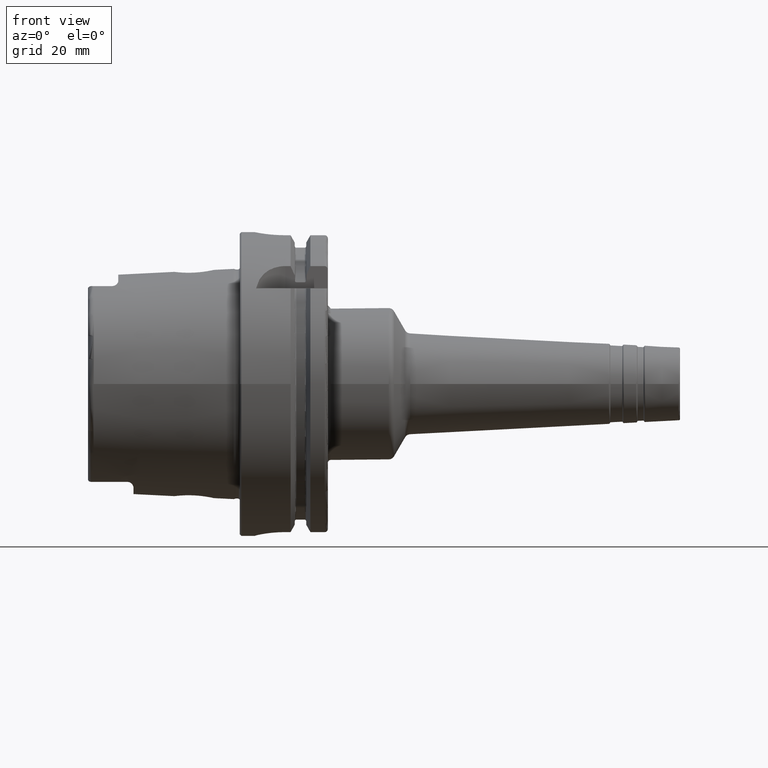
[diagram: clean part render]
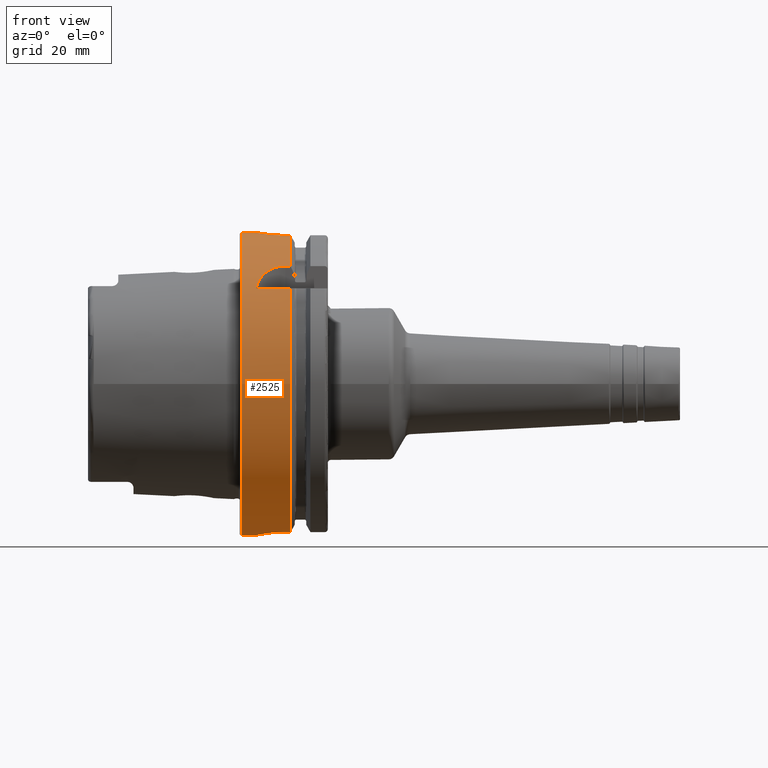
[diagram: same view with one face highlighted and labeled with its STEP entity id]
A machine part, front view. The second image highlights one B-rep face of the part: STEP entity #2525.
In plain terms, the highlighted cylindrical surface (bore or boss wall) has radius 50 mm, axis along (1, 0, 0).
Its self-contained STEP definition (entity closure, byte-faithful):
#57=B_SPLINE_CURVE_WITH_KNOTS('',3,(#4827,#4828,#4829,#4830,#4831,#4832,
#4833,#4834,#4835,#4836,#4837,#4838,#4839,#4840,#4841,#4842,#4843,#4844,
#4845,#4846,#4847,#4848,#4849,#4850,#4851,#4852),.UNSPECIFIED.,.F.,.F.,
(4,2,2,2,2,2,2,2,2,2,2,2,4),(0.,0.188478911015149,0.376957822030298,0.565436091508923,
0.753914360987547,0.942392630466172,1.1308708999448,1.31934981095995,1.50782872197509,
1.69630763299024,1.88478654400539,2.07326481348402,2.26174308296264),
 .UNSPECIFIED.);
#58=B_SPLINE_CURVE_WITH_KNOTS('',3,(#4853,#4854,#4855,#4856,#4857,#4858,
#4859,#4860,#4861,#4862),.UNSPECIFIED.,.F.,.F.,(4,2,2,2,4),(2.26174308296264,
2.45022135244127,2.63869962191989,2.82717853293504,3.01565744395019),
 .UNSPECIFIED.);
#59=B_SPLINE_CURVE_WITH_KNOTS('',3,(#4873,#4874,#4875,#4876,#4877,#4878,
#4879,#4880,#4881,#4882,#4883,#4884),.UNSPECIFIED.,.F.,.F.,(4,2,2,2,2,4),
(1.13213255574021,1.59216410027009,1.87572541272146,2.15928672517283,2.38471683342296,
2.61014694167308),.UNSPECIFIED.);
#66=B_SPLINE_CURVE_WITH_KNOTS('',3,(#4997,#4998,#4999,#5000,#5001,#5002,
#5003,#5004,#5005,#5006,#5007,#5008,#5009,#5010,#5011,#5012,#5013,#5014),
 .UNSPECIFIED.,.F.,.F.,(4,2,2,2,2,2,2,2,4),(0.,0.377795255890194,0.755590511780389,
1.13336459804459,1.51113868430879,1.88891277057299,2.26668685683718,2.64448211272738,
3.02227736861757),.UNSPECIFIED.);
#67=B_SPLINE_CURVE_WITH_KNOTS('',3,(#5022,#5023,#5024,#5025,#5026,#5027,
#5028,#5029,#5030,#5031),.UNSPECIFIED.,.F.,.F.,(4,2,2,2,4),(0.,0.377863193874929,
0.755726387749858,1.13417752669663,1.51262866564341),.UNSPECIFIED.);
#68=B_SPLINE_CURVE_WITH_KNOTS('',3,(#5035,#5036,#5037,#5038,#5039,#5040,
#5041,#5042,#5043,#5044),.UNSPECIFIED.,.F.,.F.,(4,2,2,2,4),(1.50996806152532,
1.8884192004721,2.26687033941887,2.6447335332938,3.02259672716873),
 .UNSPECIFIED.);
#122=FACE_BOUND('',#617,.T.);
#219=LINE('',#4890,#331);
#225=LINE('',#4942,#337);
#230=LINE('',#4995,#342);
#231=LINE('',#5016,#343);
#232=LINE('',#5020,#344);
#233=LINE('',#5046,#345);
#234=LINE('',#5050,#346);
#331=VECTOR('',#3418,10.);
#337=VECTOR('',#3426,10.);
#342=VECTOR('',#3435,10.);
#343=VECTOR('',#3436,10.);
#344=VECTOR('',#3439,10.);
#345=VECTOR('',#3442,10.);
#346=VECTOR('',#3445,50.);
#402=CYLINDRICAL_SURFACE('',#2813,50.);
#478=FACE_OUTER_BOUND('',#616,.T.);
#616=EDGE_LOOP('',(#2017,#2018,#2019,#2020,#2021,#2022,#2023,#2024,#2025,
#2026,#2027,#2028,#2029,#2030,#2031,#2032,#2033,#2034,#2035));
#617=EDGE_LOOP('',(#2036,#2037));
#828=CIRCLE('',#2814,50.);
#829=CIRCLE('',#2815,50.);
#830=CIRCLE('',#2816,50.);
#831=CIRCLE('',#2817,50.);
#832=CIRCLE('',#2818,50.);
#833=CIRCLE('',#2819,50.);
#834=CIRCLE('',#2820,50.);
#1087=VERTEX_POINT('',#4824);
#1088=VERTEX_POINT('',#4826);
#1091=VERTEX_POINT('',#4871);
#1092=VERTEX_POINT('',#4872);
#1094=VERTEX_POINT('',#4889);
#1103=VERTEX_POINT('',#4941);
#1112=VERTEX_POINT('',#4992);
#1113=VERTEX_POINT('',#4994);
#1114=VERTEX_POINT('',#4996);
#1115=VERTEX_POINT('',#5015);
#1116=VERTEX_POINT('',#5017);
#1117=VERTEX_POINT('',#5019);
#1118=VERTEX_POINT('',#5021);
#1119=VERTEX_POINT('',#5032);
#1120=VERTEX_POINT('',#5034);
#1121=VERTEX_POINT('',#5045);
#1122=VERTEX_POINT('',#5047);
#1123=VERTEX_POINT('',#5049);
#1124=VERTEX_POINT('',#5051);
#1420=EDGE_CURVE('',#1088,#1087,#57,.T.);
#1421=EDGE_CURVE('',#1087,#1088,#58,.T.);
#1425=EDGE_CURVE('',#1091,#1092,#59,.T.);
#1428=EDGE_CURVE('',#1092,#1094,#219,.T.);
#1439=EDGE_CURVE('',#1103,#1091,#225,.T.);
#1449=EDGE_CURVE('',#1112,#1094,#828,.T.);
#1450=EDGE_CURVE('',#1112,#1113,#230,.T.);
#1451=EDGE_CURVE('',#1113,#1114,#66,.T.);
#1452=EDGE_CURVE('',#1114,#1115,#231,.T.);
#1453=EDGE_CURVE('',#1116,#1115,#829,.T.);
#1454=EDGE_CURVE('',#1116,#1117,#232,.T.);
#1455=EDGE_CURVE('',#1117,#1118,#67,.T.);
#1456=EDGE_CURVE('',#1118,#1119,#830,.T.);
#1457=EDGE_CURVE('',#1119,#1120,#68,.T.);
#1458=EDGE_CURVE('',#1120,#1121,#233,.T.);
#1459=EDGE_CURVE('',#1122,#1121,#831,.T.);
#1460=EDGE_CURVE('',#1122,#1123,#234,.T.);
#1461=EDGE_CURVE('',#1123,#1124,#832,.T.);
#1462=EDGE_CURVE('',#1124,#1123,#833,.T.);
#1463=EDGE_CURVE('',#1103,#1122,#834,.T.);
#2017=ORIENTED_EDGE('',*,*,#1439,.T.);
#2018=ORIENTED_EDGE('',*,*,#1425,.T.);
#2019=ORIENTED_EDGE('',*,*,#1428,.T.);
#2020=ORIENTED_EDGE('',*,*,#1449,.F.);
#2021=ORIENTED_EDGE('',*,*,#1450,.T.);
#2022=ORIENTED_EDGE('',*,*,#1451,.T.);
#2023=ORIENTED_EDGE('',*,*,#1452,.T.);
#2024=ORIENTED_EDGE('',*,*,#1453,.F.);
#2025=ORIENTED_EDGE('',*,*,#1454,.T.);
#2026=ORIENTED_EDGE('',*,*,#1455,.T.);
#2027=ORIENTED_EDGE('',*,*,#1456,.T.);
#2028=ORIENTED_EDGE('',*,*,#1457,.T.);
#2029=ORIENTED_EDGE('',*,*,#1458,.T.);
#2030=ORIENTED_EDGE('',*,*,#1459,.F.);
#2031=ORIENTED_EDGE('',*,*,#1460,.T.);
#2032=ORIENTED_EDGE('',*,*,#1461,.T.);
#2033=ORIENTED_EDGE('',*,*,#1462,.T.);
#2034=ORIENTED_EDGE('',*,*,#1460,.F.);
#2035=ORIENTED_EDGE('',*,*,#1463,.F.);
#2036=ORIENTED_EDGE('',*,*,#1420,.T.);
#2037=ORIENTED_EDGE('',*,*,#1421,.T.);
#2525=ADVANCED_FACE('',(#478,#122),#402,.T.);
#2813=AXIS2_PLACEMENT_3D('',#4991,#3431,#3432);
#2814=AXIS2_PLACEMENT_3D('',#4993,#3433,#3434);
#2815=AXIS2_PLACEMENT_3D('',#5018,#3437,#3438);
#2816=AXIS2_PLACEMENT_3D('',#5033,#3440,#3441);
#2817=AXIS2_PLACEMENT_3D('',#5048,#3443,#3444);
#2818=AXIS2_PLACEMENT_3D('',#5052,#3446,#3447);
#2819=AXIS2_PLACEMENT_3D('',#5053,#3448,#3449);
#2820=AXIS2_PLACEMENT_3D('',#5054,#3450,#3451);
#3418=DIRECTION('',(1.,0.,0.));
#3426=DIRECTION('',(-1.,0.,0.));
#3431=DIRECTION('center_axis',(1.,0.,0.));
#3432=DIRECTION('ref_axis',(0.,1.,0.));
#3433=DIRECTION('center_axis',(1.,0.,0.));
#3434=DIRECTION('ref_axis',(0.,0.,-1.));
#3435=DIRECTION('',(-1.,0.,0.));
#3436=DIRECTION('',(1.,0.,0.));
#3437=DIRECTION('center_axis',(1.,0.,0.));
#3438=DIRECTION('ref_axis',(0.,0.,-1.));
#3439=DIRECTION('',(-1.,0.,0.));
#3440=DIRECTION('center_axis',(-1.,0.,0.));
#3441=DIRECTION('ref_axis',(0.,1.,0.));
#3442=DIRECTION('',(1.,0.,0.));
#3443=DIRECTION('center_axis',(1.,0.,0.));
#3444=DIRECTION('ref_axis',(0.,0.,-1.));
#3445=DIRECTION('',(-1.,0.,0.));
#3446=DIRECTION('center_axis',(1.,0.,0.));
#3447=DIRECTION('ref_axis',(0.,0.,-1.));
#3448=DIRECTION('center_axis',(1.,0.,0.));
#3449=DIRECTION('ref_axis',(0.,0.,-1.));
#3450=DIRECTION('center_axis',(1.,0.,0.));
#3451=DIRECTION('ref_axis',(0.,0.,-1.));
#4824=CARTESIAN_POINT('',(12.,50.,-6.12323399573677E-16));
#4826=CARTESIAN_POINT('',(6.99999999999999,49.749371855331,5.));
#4827=CARTESIAN_POINT('Ctrl Pts',(6.99999999999999,49.749371855331,5.));
#4828=CARTESIAN_POINT('Ctrl Pts',(6.37173696328283,49.749371855331,5.));
#4829=CARTESIAN_POINT('Ctrl Pts',(5.70188570880885,49.7624993987098,4.87435544587055));
#4830=CARTESIAN_POINT('Ctrl Pts',(4.4701142477173,49.8098541153698,4.36395693611591));
#4831=CARTESIAN_POINT('Ctrl Pts',(3.90815809537484,49.8433908660961,3.97922590724033));
#4832=CARTESIAN_POINT('Ctrl Pts',(3.02077560297968,49.9062957431473,3.09184341484517));
#4833=CARTESIAN_POINT('Ctrl Pts',(2.63604339567929,49.9397591808605,2.52988660036719));
#4834=CARTESIAN_POINT('Ctrl Pts',(2.12564400622109,49.9869460568296,1.29811292154946));
#4835=CARTESIAN_POINT('Ctrl Pts',(1.99999999999999,50.,0.628260898262081));
#4836=CARTESIAN_POINT('Ctrl Pts',(1.99999999999999,50.,-0.628260898262082));
#4837=CARTESIAN_POINT('Ctrl Pts',(2.12564400622109,49.9869460568296,-1.29811292154947));
#4838=CARTESIAN_POINT('Ctrl Pts',(2.63604339567929,49.9397591808605,-2.52988660036719));
#4839=CARTESIAN_POINT('Ctrl Pts',(3.02077560297968,49.9062957431473,-3.09184341484517));
#4840=CARTESIAN_POINT('Ctrl Pts',(3.90815809537484,49.8433908660961,-3.97922590724033));
#4841=CARTESIAN_POINT('Ctrl Pts',(4.4701142477173,49.8098541153698,-4.36395693611591));
#4842=CARTESIAN_POINT('Ctrl Pts',(5.70188570880885,49.7624993987098,-4.87435544587055));
#4843=CARTESIAN_POINT('Ctrl Pts',(6.37173696328283,49.749371855331,-5.));
#4844=CARTESIAN_POINT('Ctrl Pts',(7.62826303671716,49.749371855331,-5.));
#4845=CARTESIAN_POINT('Ctrl Pts',(8.29811429119114,49.7624993987098,-4.87435544587055));
#4846=CARTESIAN_POINT('Ctrl Pts',(9.52988575228269,49.8098541153698,-4.36395693611592));
#4847=CARTESIAN_POINT('Ctrl Pts',(10.0918419046251,49.8433908660961,-3.97922590724033));
#4848=CARTESIAN_POINT('Ctrl Pts',(10.9792243970203,49.9062957431473,-3.09184341484517));
#4849=CARTESIAN_POINT('Ctrl Pts',(11.3639566043207,49.9397591808605,-2.52988660036719));
#4850=CARTESIAN_POINT('Ctrl Pts',(11.8743559937789,49.9869460568296,-1.29811292154946));
#4851=CARTESIAN_POINT('Ctrl Pts',(12.,50.,-0.628260898262081));
#4852=CARTESIAN_POINT('Ctrl Pts',(12.,50.,-4.16333634234434E-16));
#4853=CARTESIAN_POINT('Ctrl Pts',(12.,50.,-6.93889390390723E-16));
#4854=CARTESIAN_POINT('Ctrl Pts',(12.,50.,0.62826089826208));
#4855=CARTESIAN_POINT('Ctrl Pts',(11.8743559937789,49.9869460568296,1.29811292154946));
#4856=CARTESIAN_POINT('Ctrl Pts',(11.3639566043207,49.9397591808605,2.52988660036719));
#4857=CARTESIAN_POINT('Ctrl Pts',(10.9792243970203,49.9062957431473,3.09184341484517));
#4858=CARTESIAN_POINT('Ctrl Pts',(10.0918419046251,49.8433908660961,3.97922590724033));
#4859=CARTESIAN_POINT('Ctrl Pts',(9.5298857522827,49.8098541153698,4.36395693611591));
#4860=CARTESIAN_POINT('Ctrl Pts',(8.29811429119114,49.7624993987098,4.87435544587055));
#4861=CARTESIAN_POINT('Ctrl Pts',(7.62826303671716,49.749371855331,5.));
#4862=CARTESIAN_POINT('Ctrl Pts',(6.99999999999999,49.749371855331,5.));
#4871=CARTESIAN_POINT('',(5.36310214079494,-38.8297566307078,31.5));
#4872=CARTESIAN_POINT('',(15.,-31.5,38.8297566307078));
#4873=CARTESIAN_POINT('Ctrl Pts',(5.36310214079494,-38.8297566307078,31.5));
#4874=CARTESIAN_POINT('Ctrl Pts',(5.63795050776221,-37.8378299510303,32.722738779917));
#4875=CARTESIAN_POINT('Ctrl Pts',(6.08245260240086,-36.8264130955983,33.8486741193789));
#4876=CARTESIAN_POINT('Ctrl Pts',(7.14730321206235,-35.2667182945212,35.4540138707062));
#4877=CARTESIAN_POINT('Ctrl Pts',(7.68113760815893,-34.6306580359392,36.0741351437033));
#4878=CARTESIAN_POINT('Ctrl Pts',(8.97436758466638,-33.4722127660808,37.1515365058173));
#4879=CARTESIAN_POINT('Ctrl Pts',(9.73574998094174,-32.9521170857844,37.6088911783762));
#4880=CARTESIAN_POINT('Ctrl Pts',(11.1521999725134,-32.2432973482077,38.2170233500259));
#4881=CARTESIAN_POINT('Ctrl Pts',(11.8888981504148,-31.9629772872452,38.4503075998006));
#4882=CARTESIAN_POINT('Ctrl Pts',(13.4369856471743,-31.5908755949743,38.7566077888176));
#4883=CARTESIAN_POINT('Ctrl Pts',(14.2485663058329,-31.5,38.8297566307078));
#4884=CARTESIAN_POINT('Ctrl Pts',(15.,-31.5,38.8297566307078));
#4889=CARTESIAN_POINT('',(16.7379709790786,-31.5,38.8297566307078));
#4890=CARTESIAN_POINT('',(8.61898548953931,-31.5,38.8297566307078));
#4941=CARTESIAN_POINT('',(16.7379709790786,-38.8297566307078,31.5));
#4942=CARTESIAN_POINT('',(8.61898548953931,-38.8297566307078,31.5));
#4991=CARTESIAN_POINT('Origin',(8.61898548953931,0.,0.));
#4992=CARTESIAN_POINT('',(16.7379709790786,-10.,48.9897948556636));
#4993=CARTESIAN_POINT('Origin',(16.7379709790786,0.,0.));
#4994=CARTESIAN_POINT('',(15.,-10.,48.9897948556636));
#4995=CARTESIAN_POINT('',(8.61898548953931,-10.,48.9897948556636));
#4996=CARTESIAN_POINT('',(15.,10.,48.9897948556636));
#4997=CARTESIAN_POINT('Ctrl Pts',(15.,-10.,48.9897948556636));
#4998=CARTESIAN_POINT('Ctrl Pts',(13.740682480366,-10.,48.9897948556636));
#4999=CARTESIAN_POINT('Ctrl Pts',(12.3998222283811,-9.74762796248614,49.0433876618447));
#5000=CARTESIAN_POINT('Ctrl Pts',(9.93707994969945,-8.72605417648382,49.2354150792771));
#5001=CARTESIAN_POINT('Ctrl Pts',(8.81489539818993,-7.95703102192089,49.3709085101933));
#5002=CARTESIAN_POINT('Ctrl Pts',(7.04301862271998,-6.18515424645094,49.6240337638318));
#5003=CARTESIAN_POINT('Ctrl Pts',(6.27395658455242,-5.06294861197626,49.7583347151863));
#5004=CARTESIAN_POINT('Ctrl Pts',(5.25235457764165,-2.60013306081865,49.9476188647081));
#5005=CARTESIAN_POINT('Ctrl Pts',(4.99999999999999,-1.259246954214,50.));
#5006=CARTESIAN_POINT('Ctrl Pts',(4.99999999999999,1.259246954214,50.));
#5007=CARTESIAN_POINT('Ctrl Pts',(5.25235457764165,2.60013306081865,49.9476188647081));
#5008=CARTESIAN_POINT('Ctrl Pts',(6.27395658455242,5.06294861197626,49.7583347151863));
#5009=CARTESIAN_POINT('Ctrl Pts',(7.04301862271998,6.18515424645094,49.6240337638318));
#5010=CARTESIAN_POINT('Ctrl Pts',(8.81489539818993,7.95703102192089,49.3709085101933));
#5011=CARTESIAN_POINT('Ctrl Pts',(9.93707994969945,8.72605417648382,49.2354150792771));
#5012=CARTESIAN_POINT('Ctrl Pts',(12.3998222283811,9.74762796248614,49.0433876618447));
#5013=CARTESIAN_POINT('Ctrl Pts',(13.740682480366,10.,48.9897948556636));
#5014=CARTESIAN_POINT('Ctrl Pts',(15.,10.,48.9897948556636));
#5015=CARTESIAN_POINT('',(16.7379709790786,10.,48.9897948556636));
#5016=CARTESIAN_POINT('',(8.61898548953931,10.,48.9897948556636));
#5017=CARTESIAN_POINT('',(16.7379709790786,11.,-48.7749935930288));
#5018=CARTESIAN_POINT('Origin',(16.7379709790786,0.,0.));
#5019=CARTESIAN_POINT('',(15.,11.,-48.7749935930288));
#5020=CARTESIAN_POINT('',(8.61898548953931,11.,-48.7749935930288));
#5021=CARTESIAN_POINT('',(4.99999999999999,0.999999999999997,-49.9899989998));
#5022=CARTESIAN_POINT('Ctrl Pts',(15.,11.,-48.7749935930288));
#5023=CARTESIAN_POINT('Ctrl Pts',(13.7404560204169,11.,-48.7749935930288));
#5024=CARTESIAN_POINT('Ctrl Pts',(12.3998213084084,10.7475295248871,-48.8340306344483));
#5025=CARTESIAN_POINT('Ctrl Pts',(9.9383361278342,9.72667325975831,-49.0475663096823));
#5026=CARTESIAN_POINT('Ctrl Pts',(8.81713821454868,8.95850056252305,-49.1990678796225));
#5027=CARTESIAN_POINT('Ctrl Pts',(7.04551978193545,7.18842719108522,-49.4887060645896));
#5028=CARTESIAN_POINT('Ctrl Pts',(6.27594389465425,6.06650925178,-49.6460359942126));
#5029=CARTESIAN_POINT('Ctrl Pts',(5.25307325920197,3.60309260864685,-49.8853600567865));
#5030=CARTESIAN_POINT('Ctrl Pts',(4.99999999999999,2.26125147049483,-49.9647689238702));
#5031=CARTESIAN_POINT('Ctrl Pts',(4.99999999999999,1.,-49.9899989998));
#5032=CARTESIAN_POINT('',(4.99999999999999,-1.00000000000001,-49.9899989998));
#5033=CARTESIAN_POINT('Origin',(4.99999999999999,0.,0.));
#5034=CARTESIAN_POINT('',(15.,-11.,-48.7749935930288));
#5035=CARTESIAN_POINT('Ctrl Pts',(4.99999999999999,-1.,-49.9899989998));
#5036=CARTESIAN_POINT('Ctrl Pts',(4.99999999999999,-2.26125147049483,-49.9647689238702));
#5037=CARTESIAN_POINT('Ctrl Pts',(5.25307325920197,-3.60309260864686,-49.8853600567865));
#5038=CARTESIAN_POINT('Ctrl Pts',(6.27594389465425,-6.06650925178001,-49.6460359942126));
#5039=CARTESIAN_POINT('Ctrl Pts',(7.04551978193545,-7.18842719108522,-49.4887060645896));
#5040=CARTESIAN_POINT('Ctrl Pts',(8.81713821454868,-8.95850056252306,-49.1990678796225));
#5041=CARTESIAN_POINT('Ctrl Pts',(9.9383361278342,-9.72667325975831,-49.0475663096823));
#5042=CARTESIAN_POINT('Ctrl Pts',(12.3998213084084,-10.7475295248871,-48.8340306344483));
#5043=CARTESIAN_POINT('Ctrl Pts',(13.7404560204169,-11.,-48.7749935930288));
#5044=CARTESIAN_POINT('Ctrl Pts',(15.,-11.,-48.7749935930288));
#5045=CARTESIAN_POINT('',(16.7379709790786,-11.,-48.7749935930288));
#5046=CARTESIAN_POINT('',(8.61898548953931,-11.,-48.7749935930288));
#5047=CARTESIAN_POINT('',(16.7379709790786,-50.,-6.12323399573677E-15));
#5048=CARTESIAN_POINT('Origin',(16.7379709790786,0.,0.));
#5049=CARTESIAN_POINT('',(0.499999999999999,-50.,-6.12323399573677E-15));
#5050=CARTESIAN_POINT('',(8.61898548953931,-50.,-6.12323399573677E-15));
#5051=CARTESIAN_POINT('',(0.5,50.,0.));
#5052=CARTESIAN_POINT('Origin',(0.5,0.,0.));
#5053=CARTESIAN_POINT('Origin',(0.5,0.,0.));
#5054=CARTESIAN_POINT('Origin',(16.7379709790786,0.,0.));